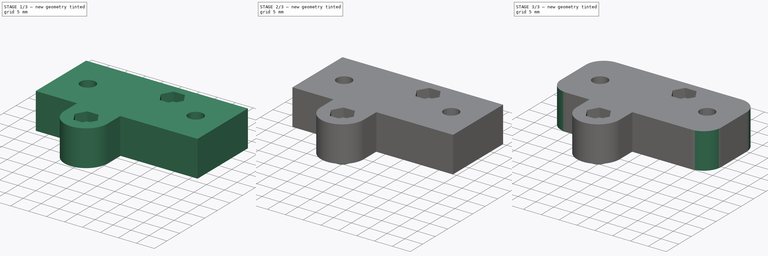
[diagram: build sequence overview — one tinted view per stage of 3, left to right]
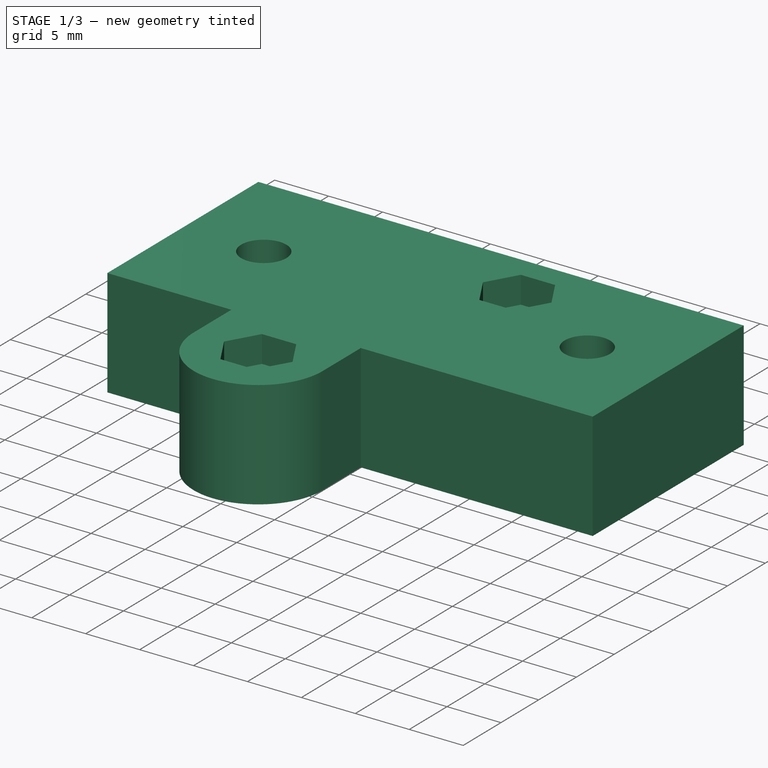
[diagram: stage 1 of 3 — iso view after this stage's code; geometry added in this stage tinted green]
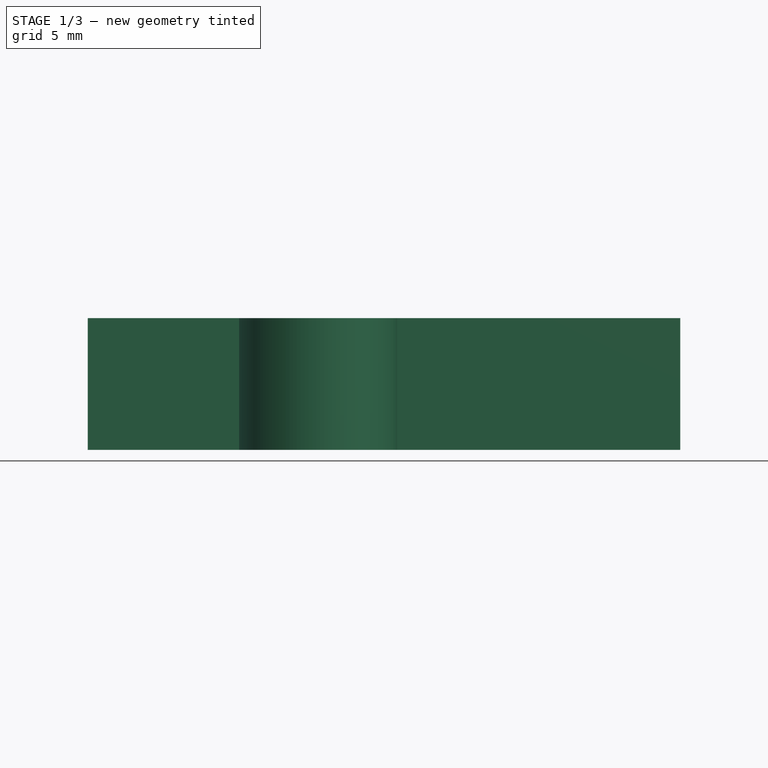
[diagram: stage 1 of 3 — front view after this stage's code; geometry added in this stage tinted green]
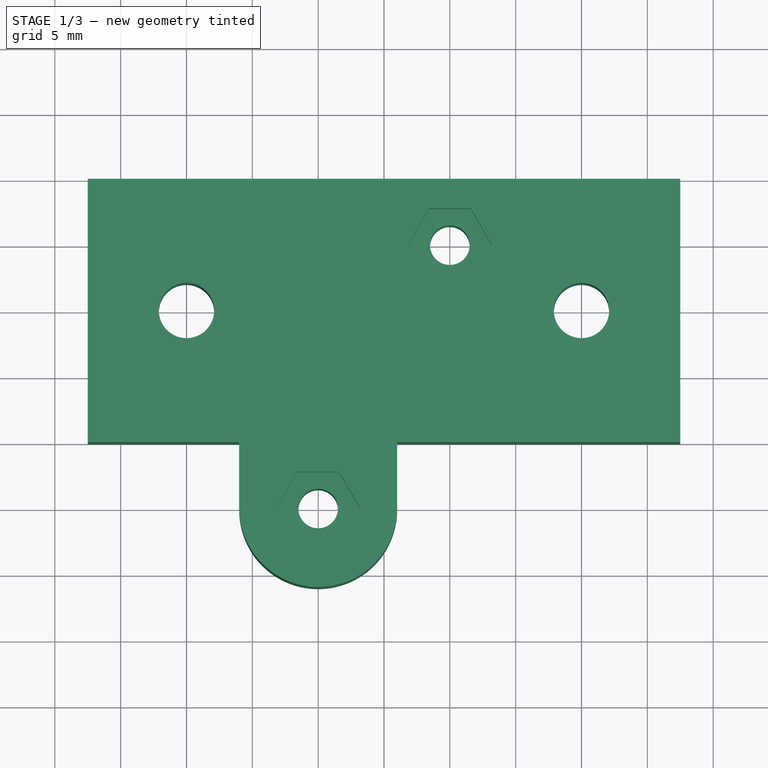
[diagram: stage 1 of 3 — top view after this stage's code; geometry added in this stage tinted green]
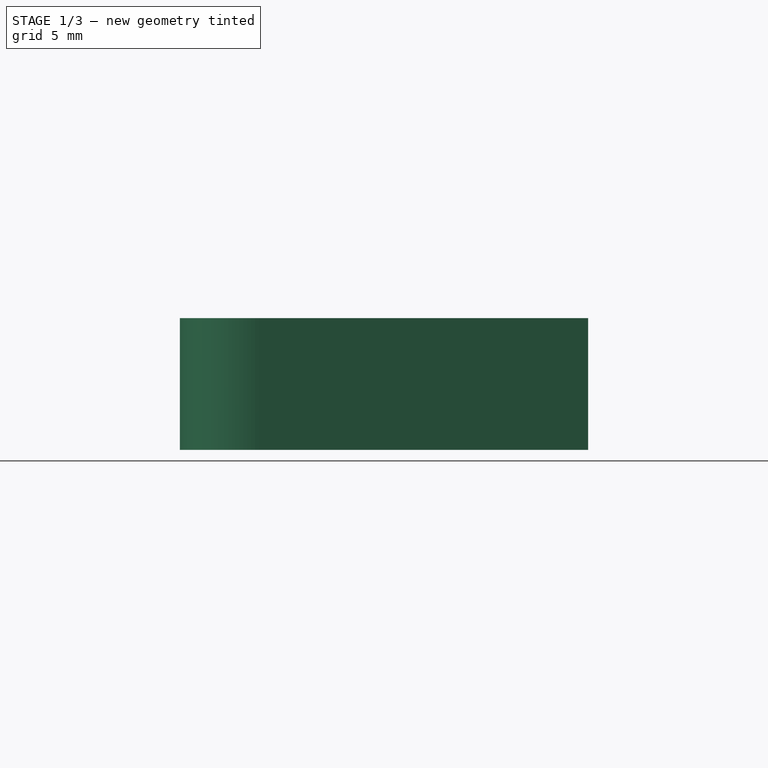
[diagram: stage 1 of 3 — right view after this stage's code; geometry added in this stage tinted green]
FCSTD DOCUMENT  (FreeCAD 0.16R6704 (Git))
Label: Z-pulley-mount
License: All rights reserved
LicenseURL: http://de.wikipedia.org/wiki/Alle_Rechte_vorbehalten
objects: Sketcher::SketchObject×5, PartDesign::Pad×3, PartDesign::Pocket×2, PartDesign::Fillet×2
note: 17 computed .brp shape members not serialized (recipe doc carries the construction recipe); baked Part::Feature solids carry a one-line shape summary decoded from their .brp

FEATURE [Sketcher::SketchObject] Sketch
  sketch-geometry (13):
    g0: LineSegment StartX=-22.5 StartY=10 StartZ=0 EndX=22.5 EndY=10 EndZ=0
    g1: LineSegment StartX=22.5 StartY=10 StartZ=0 EndX=22.5 EndY=-10 EndZ=0
    g2: LineSegment StartX=-22.5 StartY=-10 StartZ=0 EndX=-22.5 EndY=10 EndZ=0
    g3: Circle CenterX=-15 CenterY=0 CenterZ=0 NormalX=0 NormalY=0 NormalZ=1 Radius=2.1
    g4: Circle CenterX=15 CenterY=0 CenterZ=0 NormalX=0 NormalY=0 NormalZ=1 Radius=2.1
    g5: Circle CenterX=5 CenterY=5 CenterZ=0 NormalX=0 NormalY=0 NormalZ=1 Radius=1.5
    g6: Circle CenterX=-5 CenterY=-15 CenterZ=0 NormalX=0 NormalY=0 NormalZ=1 Radius=1.5
    g7: LineSegment StartX=-22.5 StartY=-10 StartZ=0 EndX=-11 EndY=-10 EndZ=0
    g8: LineSegment StartX=22.5 StartY=-10 StartZ=0 EndX=1 EndY=-10 EndZ=0
    g9: ArcOfCircle CenterX=-5 CenterY=-15 CenterZ=0 NormalX=0 NormalY=0 NormalZ=1 Radius=6 StartAngle=3.14159 EndAngle=6.28319
    g10: LineSegment StartX=-11 StartY=-15 StartZ=0 EndX=-11 EndY=-10 EndZ=0
    g11: LineSegment StartX=1 StartY=-15 StartZ=0 EndX=1 EndY=-10 EndZ=0
    g12: LineSegment [constr] StartX=-11 StartY=-10 StartZ=0 EndX=1 EndY=-10 EndZ=0
  constraints (38):
    c: Coincident(g0,g1)
    c: Coincident(g2,g0)
    c: Horizontal(g0)
    c: Vertical(g1)
    c: Vertical(g2)
    c: Symmetric(g0,g2,g-1)
    c: Symmetric(g0,g0,g-2)
    c: DistanceY(g1,g1) = 20
    c: PointOnObject(g3,g-1)
    c: PointOnObject(g4,g-1)
    c: Symmetric(g3,g4,g-2)
    c: DistanceX(g4,g0) = 7.5
    c: DistanceX(g0,g0) = 45
    c: Equal(g3,g4)
    c: Radius(g3) = 2.1
    c: DistanceY(g6,g-1) = 15
    c: DistanceX(g6,g-1) = 5
    c: DistanceX(g-1,g5) = 5
    c: DistanceY(g-1,g5) = 5
    c: Equal(g6,g5)
    c: Radius(g6) = 1.5
    c: Coincident(g7,g2)
    c: Horizontal(g7)
    c: Coincident(g8,g1)
    c: Horizontal(g8)
    c: Coincident(g9,g6)
    c: Coincident(g10,g9)
    c: Vertical(g10)
    c: Coincident(g10,g7)
    c: Coincident(g11,g9)
    c: Coincident(g11,g8)
    c: Vertical(g11)
    c: Radius(g9) = 6
    c: Coincident(g12,g7)
    c: Coincident(g12,g8)
    c: Horizontal(g12)
    c: Angle(g9) = 3.14159
    c: DistanceY(g10,g10) = 5
FEATURE [PartDesign::Pad] Pad
  Length = 10
  Length2 = 100
  Sketch = -> Sketch
  Type = 0
FEATURE [Sketcher::SketchObject] Sketch001
  ExternalGeometry = -> [Pad]
  Placement = pos=(0,0,10) rot=(0,0,1;0rad)
  Support = -> Pad [Face14]
  sketch-geometry (14):
    g0: LineSegment StartX=6.58771 StartY=2.25 StartZ=0 EndX=8.17543 EndY=5 EndZ=0
    g1: LineSegment StartX=8.17543 StartY=5 StartZ=0 EndX=6.58771 EndY=7.75 EndZ=0
    g2: LineSegment StartX=6.58771 StartY=7.75 StartZ=0 EndX=3.41229 EndY=7.75 EndZ=0
    g3: LineSegment StartX=3.41229 StartY=7.75 StartZ=0 EndX=1.82457 EndY=5 EndZ=0
    g4: LineSegment StartX=1.82457 StartY=5 StartZ=0 EndX=3.41229 EndY=2.25 EndZ=0
    g5: LineSegment StartX=3.41229 StartY=2.25 StartZ=0 EndX=6.58771 EndY=2.25 EndZ=0
    g6: Circle [constr] CenterX=5 CenterY=5 CenterZ=0 NormalX=0 NormalY=0 NormalZ=1 Radius=3.17543
    g7: LineSegment StartX=-3.41229 StartY=-17.75 StartZ=0 EndX=-1.82457 EndY=-15 EndZ=0
    g8: LineSegment StartX=-1.82457 StartY=-15 StartZ=0 EndX=-3.41229 EndY=-12.25 EndZ=0
    g9: LineSegment StartX=-3.41229 StartY=-12.25 StartZ=0 EndX=-6.58771 EndY=-12.25 EndZ=0
    g10: LineSegment StartX=-6.58771 StartY=-12.25 StartZ=0 EndX=-8.17543 EndY=-15 EndZ=0
    g11: LineSegment StartX=-8.17543 StartY=-15 StartZ=0 EndX=-6.58771 EndY=-17.75 EndZ=0
    g12: LineSegment StartX=-6.58771 StartY=-17.75 StartZ=0 EndX=-3.41229 EndY=-17.75 EndZ=0
    g13: Circle [constr] CenterX=-5 CenterY=-15 CenterZ=0 NormalX=0 NormalY=0 NormalZ=1 Radius=3.17543
  constraints (32):
    c: Coincident(g0,g1)
    c: Coincident(g1,g2)
    c: Coincident(g2,g3)
    c: Coincident(g3,g4)
    c: Coincident(g4,g5)
    c: Coincident(g5,g0)
    c: Equal(g0, g1-g5) x5
    c: PointOnObject(g0,g6)
    c: PointOnObject(g1,g6)
    c: PointOnObject(g2,g6)
    c: PointOnObject(g3,g6)
    c: PointOnObject(g4,g6)
    c: PointOnObject(g5,g6)
    c: Coincident(g6,g-3)
    c: Coincident(g7,g8)
    c: Coincident(g8,g9)
    c: Coincident(g9,g10)
    c: Coincident(g10,g11)
    c: Coincident(g11,g12)
    c: Coincident(g12,g7)
    c: Equal(g7, g8-g12) x5
    c: PointOnObject(g7,g13)
    c: PointOnObject(g8,g13)
    c: PointOnObject(g9,g13)
    c: PointOnObject(g10,g13)
    c: PointOnObject(g11,g13)
    c: PointOnObject(g12,g13)
    c: Coincident(g13,g-4)
    c: Horizontal(g12)
    c: Horizontal(g5)
    c: Equal(g6,g13)
    c: Distance(g10,g8) = 5.5
FEATURE [PartDesign::Pocket] Pocket
  Length = 2.5
  Sketch = -> Sketch001
  Type = 0
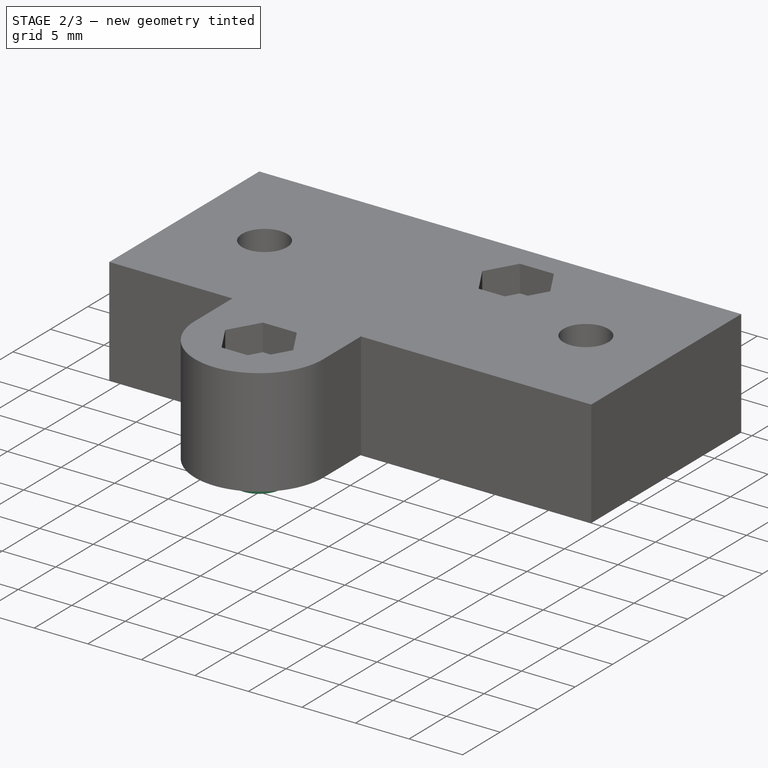
[diagram: stage 2 of 3 — iso view after this stage's code; geometry added in this stage tinted green]
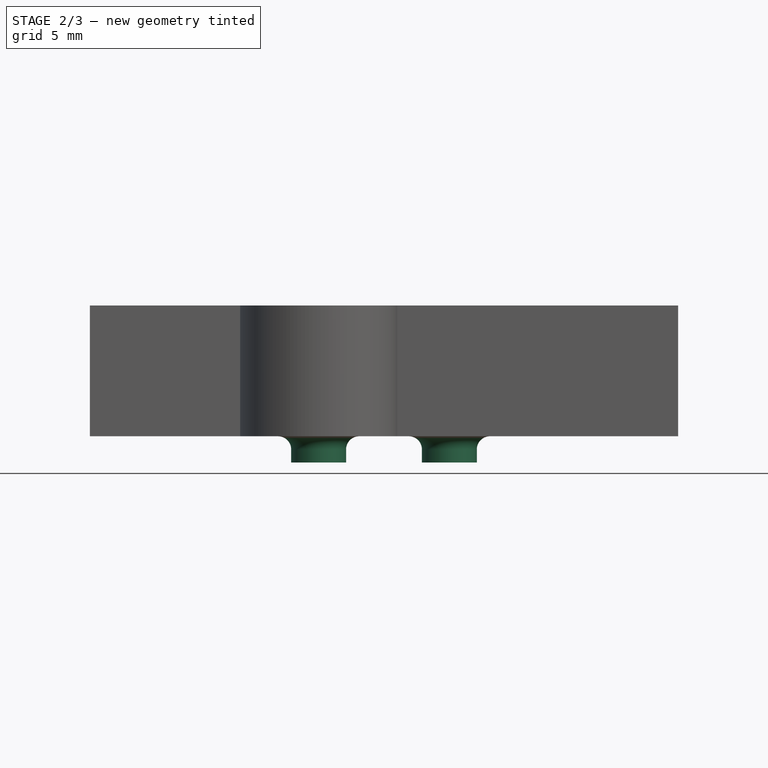
[diagram: stage 2 of 3 — front view after this stage's code; geometry added in this stage tinted green]
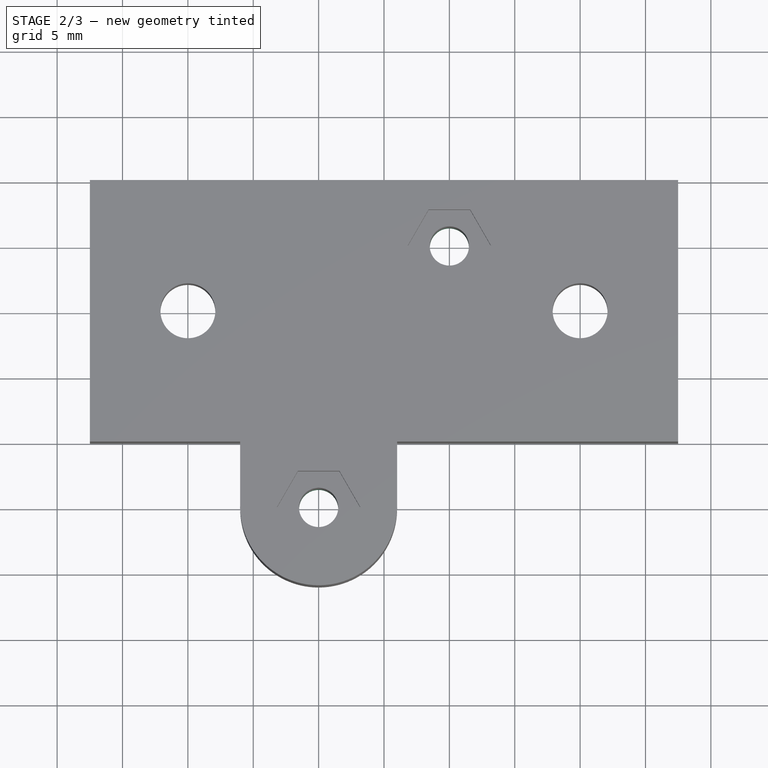
[diagram: stage 2 of 3 — top view after this stage's code; geometry added in this stage tinted green]
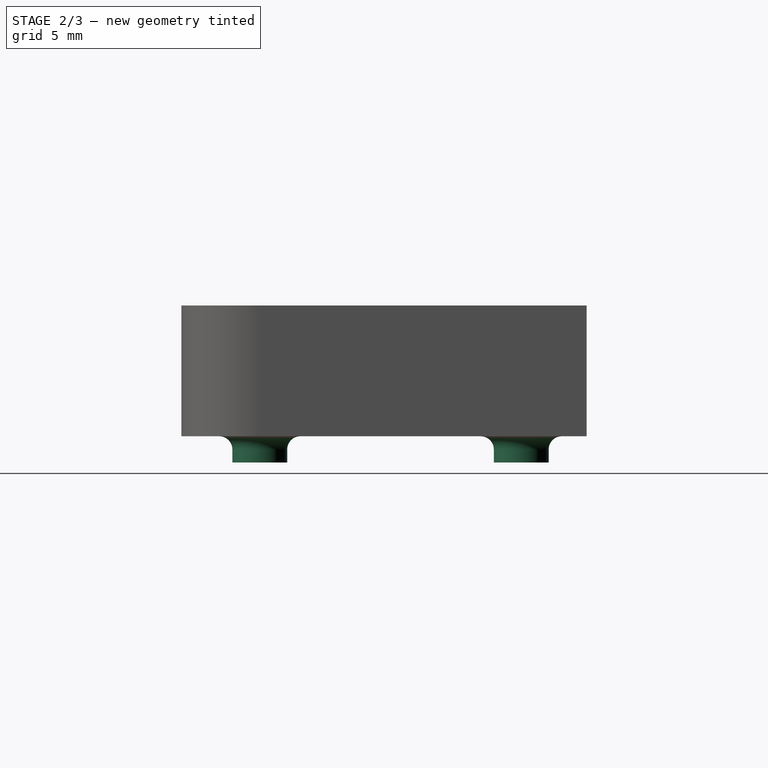
[diagram: stage 2 of 3 — right view after this stage's code; geometry added in this stage tinted green]
FEATURE [Sketcher::SketchObject] Sketch002
  ExternalGeometry = -> [Pocket]
  Placement = pos=(0,0,0) rot=(1,0,0;3.14159rad)
  Support = -> Pocket [Face4]
  sketch-geometry (4):
    g0: Circle CenterX=5 CenterY=-5 CenterZ=0 NormalX=0 NormalY=0 NormalZ=1 Radius=1.5
    g1: Circle CenterX=5 CenterY=-5 CenterZ=0 NormalX=0 NormalY=0 NormalZ=1 Radius=2.1
    g2: Circle CenterX=-5 CenterY=15 CenterZ=0 NormalX=0 NormalY=0 NormalZ=1 Radius=1.5
    g3: Circle CenterX=-5 CenterY=15 CenterZ=0 NormalX=0 NormalY=0 NormalZ=1 Radius=2.1
  constraints (8):
    c: Coincident(g0,g-4)
    c: Coincident(g1,g0)
    c: Coincident(g2,g-3)
    c: Coincident(g3,g2)
    c: Equal(g2,g-3)
    c: Equal(g-4,g0)
    c: Equal(g1,g3)
    c: Radius(g3) = 2.1
FEATURE [PartDesign::Pad] Pad001
  Length = 2
  Length2 = 100
  Sketch = -> Sketch002
  Type = 0
FEATURE [Sketcher::SketchObject] Sketch003
  ExternalGeometry = -> [Pad001]
  Placement = pos=(0,0,0) rot=(1,0,0;3.14159rad)
  Support = -> Pad001 [Face4]
  sketch-geometry (4):
    g0: Circle CenterX=-15 CenterY=0 CenterZ=0 NormalX=0 NormalY=0 NormalZ=1 Radius=2.1
    g1: Circle CenterX=15 CenterY=0 CenterZ=0 NormalX=0 NormalY=0 NormalZ=1 Radius=3.75
    g2: Circle CenterX=15 CenterY=0 CenterZ=0 NormalX=0 NormalY=0 NormalZ=1 Radius=2.1
    g3: Circle CenterX=-15 CenterY=0 CenterZ=0 NormalX=0 NormalY=0 NormalZ=1 Radius=3.75
  constraints (8):
    c: Coincident(g0,g-4)
    c: Coincident(g1,g-3)
    c: Coincident(g2,g1)
    c: Coincident(g3,g0)
    c: Equal(g-3,g2)
    c: Equal(g1,g3)
    c: Equal(g0,g-4)
    c: Radius(g3) = 3.75
FEATURE [PartDesign::Pocket] Pocket001
  Length = 2.5
  Sketch = -> Sketch003
  Type = 0
FEATURE [PartDesign::Fillet] Fillet
  Base = -> Pocket001 [Edge16,Edge19]
  Radius = 1
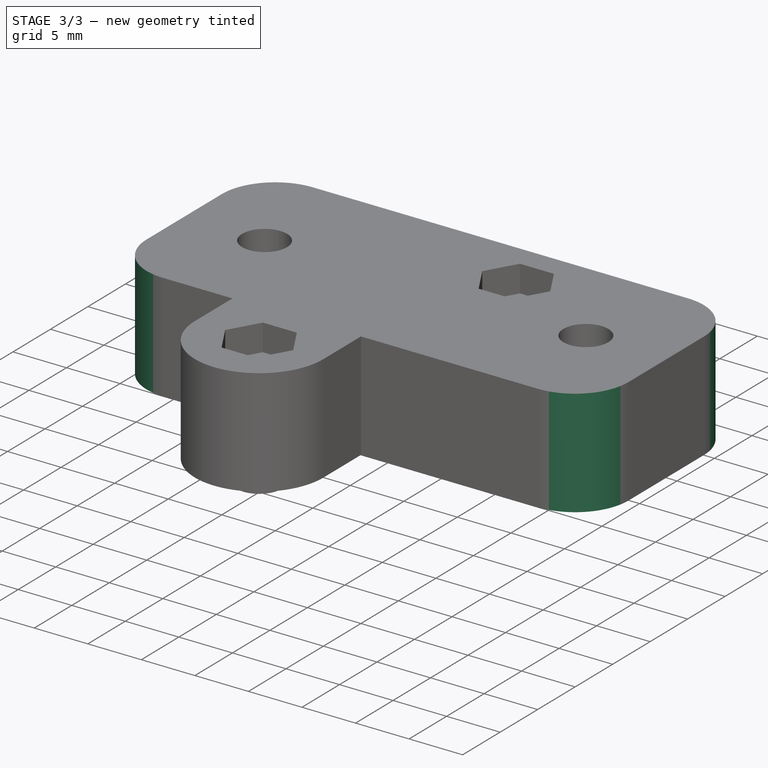
[diagram: stage 3 of 3 — iso view after this stage's code; geometry added in this stage tinted green]
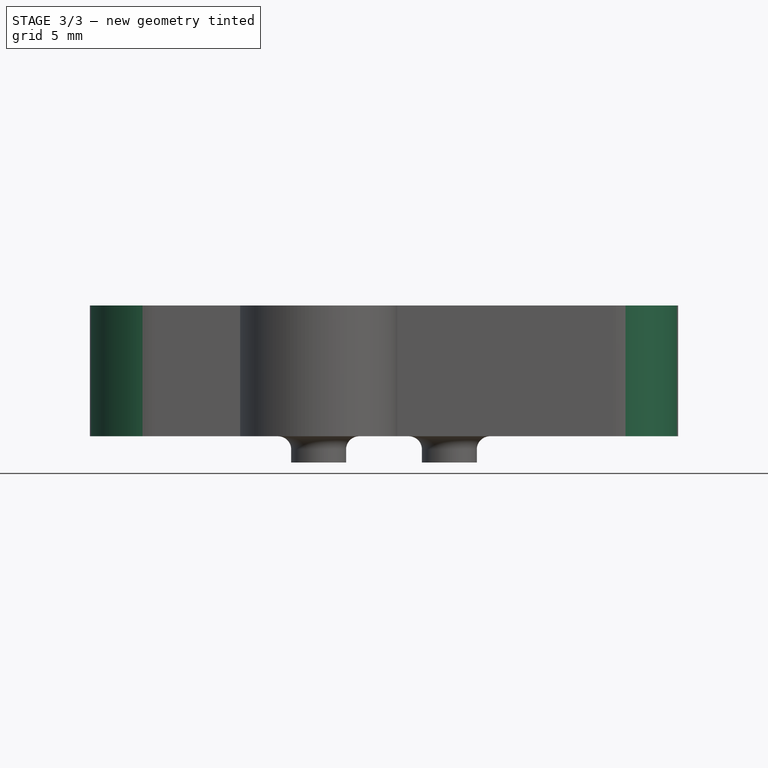
[diagram: stage 3 of 3 — front view after this stage's code; geometry added in this stage tinted green]
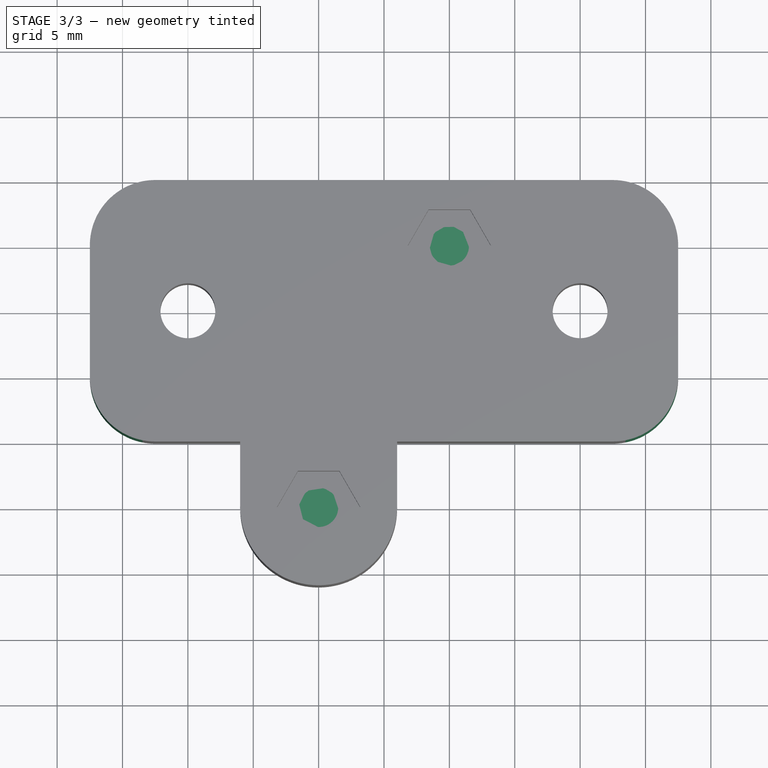
[diagram: stage 3 of 3 — top view after this stage's code; geometry added in this stage tinted green]
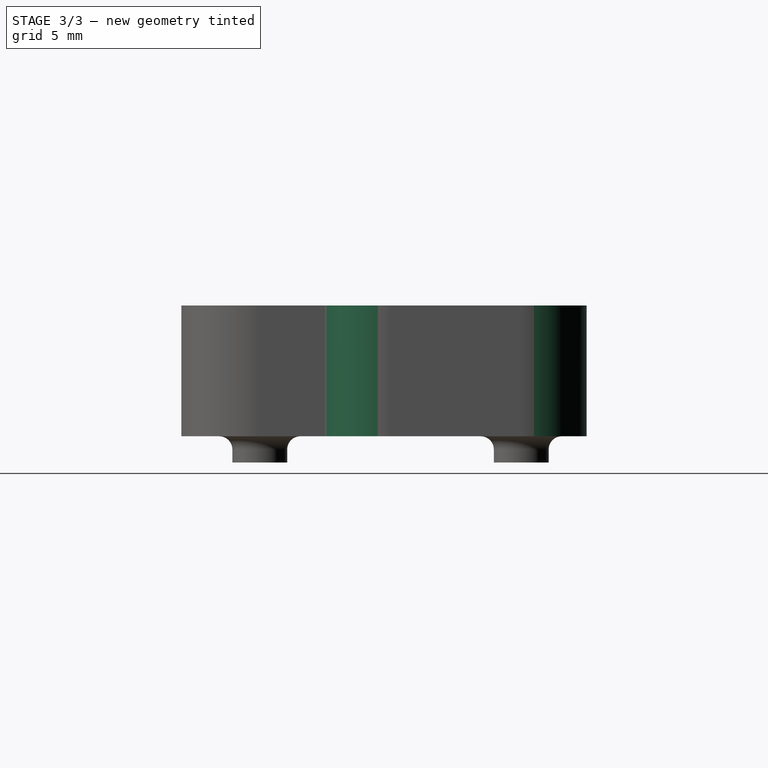
[diagram: stage 3 of 3 — right view after this stage's code; geometry added in this stage tinted green]
FEATURE [PartDesign::Fillet] Fillet001
  Base = -> Fillet [Edge28,Edge26,Edge24,Edge20]
  Radius = 5
FEATURE [Sketcher::SketchObject] Sketch004
  ExternalGeometry = -> [Fillet001]
  Placement = pos=(0,0,7.5) rot=(0,0,1;0rad)
  Support = -> Fillet001 [Face39]
  sketch-geometry (2):
    g0: Circle CenterX=-5 CenterY=-15 CenterZ=0 NormalX=0 NormalY=0 NormalZ=1 Radius=1.5
    g1: Circle CenterX=5 CenterY=5 CenterZ=0 NormalX=0 NormalY=0 NormalZ=1 Radius=1.5
  constraints (4):
    c: Coincident(g0,g-4)
    c: Coincident(g1,g-3)
    c: Equal(g-3,g1)
    c: Equal(g-4,g0)
FEATURE [PartDesign::Pad] Pad002
  Length = 1
  Length2 = 100
  Reversed = true
  Sketch = -> Sketch004
  Type = 0
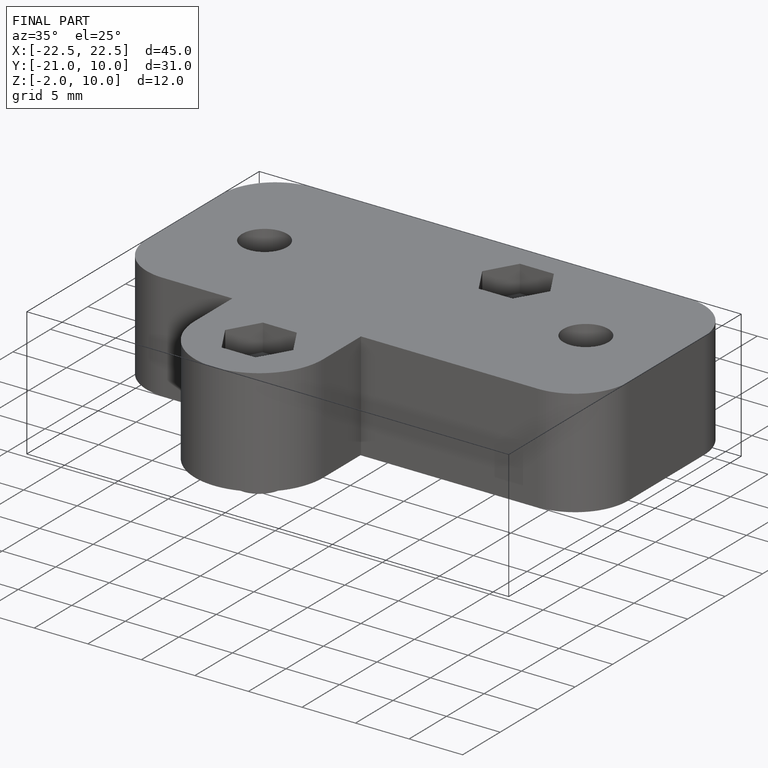
[diagram: finished part — iso view with bounding-box wireframe]
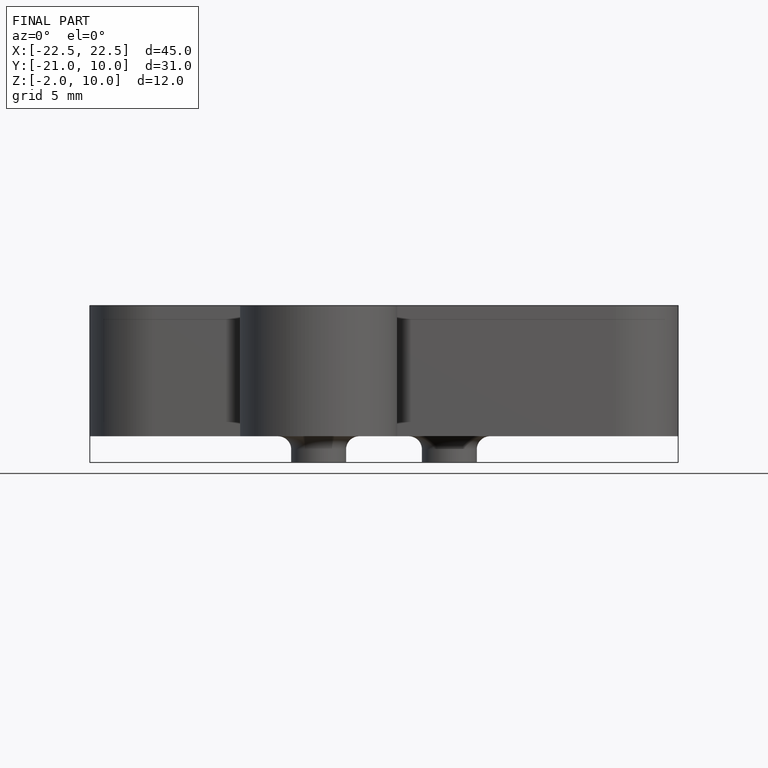
[diagram: finished part — front view with bounding-box wireframe]
